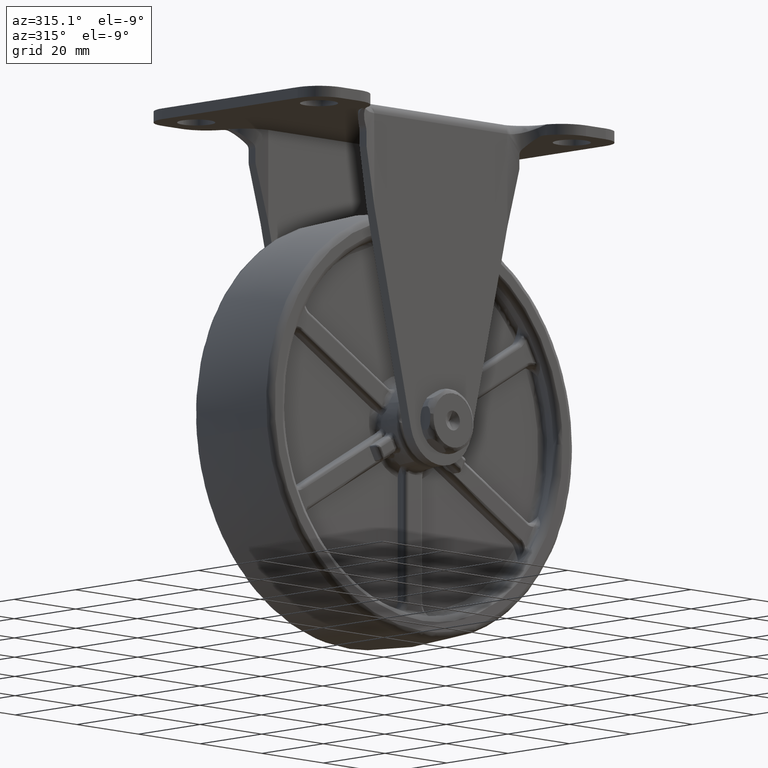
[diagram: clean part render]
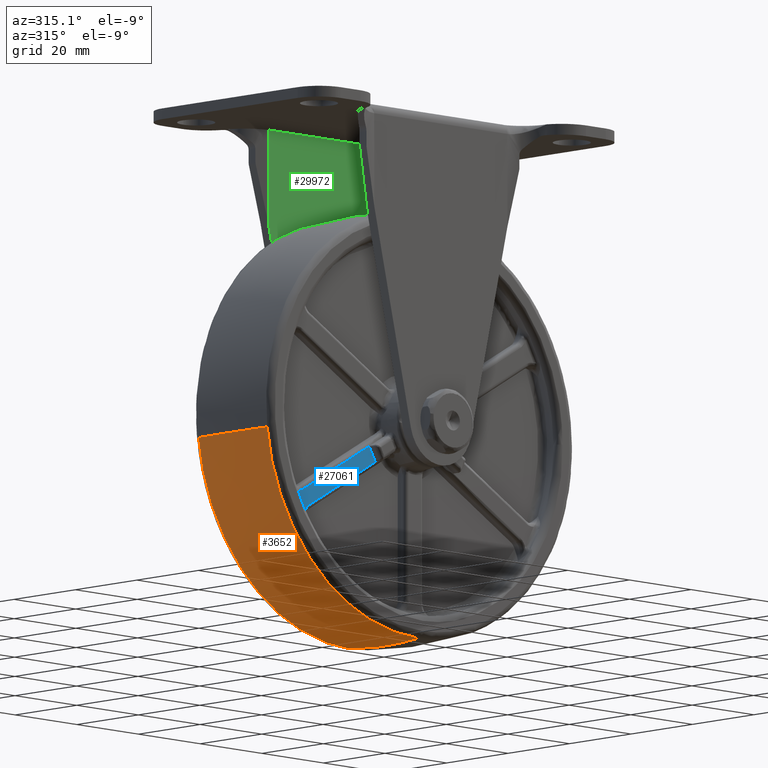
[diagram: same view with three faces highlighted in distinct colors, each labeled with its STEP entity id]
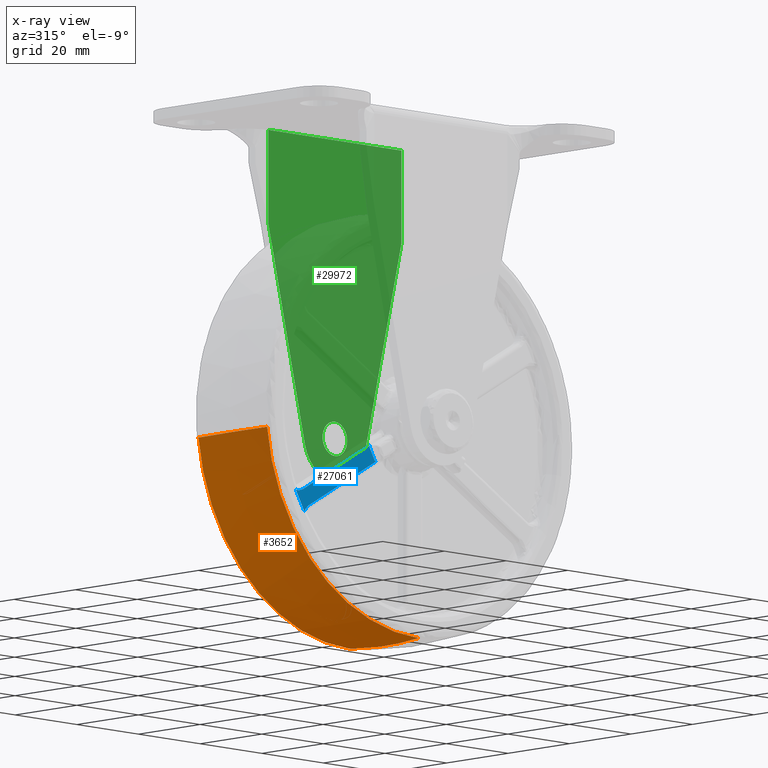
[diagram: x-ray of the same camera — body ghosted, the three highlighted faces saturated]
A machine part, auxiliary view with three faces highlighted in distinct colors.
The next image is the same camera in x-ray (body ghosted, the three faces saturated) — at least one of them is partly hidden behind the body in this view.
Their STEP definitions:

[orange] entity #3652 — the highlighted face is a freeform B-spline surface patch.
#2618=CARTESIAN_POINT('',(-32.0,11.167486431459400,-119.374479856764400));
#2619=VERTEX_POINT('',#2618);
#2633=CARTESIAN_POINT('',(-81.044250389141993,11.167505489230811,-75.700925661845233));
#2634=VERTEX_POINT('',#2633);
#2635=CARTESIAN_POINT('',(-32.0,11.167486431459400,-119.374479856764400));
#2636=CARTESIAN_POINT('',(-75.967616791955408,11.167495960345105,-119.374478428022740));
#2637=CARTESIAN_POINT('',(-81.044250389141993,11.167505489230811,-75.700925661845233));
#2645=(BOUNDED_CURVE()B_SPLINE_CURVE(2,(#2635,#2636,#2637),.UNSPECIFIED.,.F.,.U.)B_SPLINE_CURVE_WITH_KNOTS((3,3),(0.500000000000000,0.730000208169636),.UNSPECIFIED.)CURVE()GEOMETRIC_REPRESENTATION_ITEM()RATIONAL_B_SPLINE_CURVE((1.0,0.730537994805725,0.956886527919377))REPRESENTATION_ITEM(''));
#2646=EDGE_CURVE('',#2619,#2634,#2645,.T.);
#2823=CARTESIAN_POINT('',(-32.0,-11.167492936774201,-119.374479125708700));
#2824=VERTEX_POINT('',#2823);
#2930=CARTESIAN_POINT('',(-81.044251854485225,-11.167492396826070,-75.700925798277410));
#2931=VERTEX_POINT('',#2930);
#2947=CARTESIAN_POINT('',(-32.0,-11.167492936774201,-119.374479125708700));
#2948=CARTESIAN_POINT('',(-75.967617552870720,-11.167492666800136,-119.374478147435040));
#2949=CARTESIAN_POINT('',(-81.044251854485239,-11.167492396826065,-75.700925798277410));
#2957=(BOUNDED_CURVE()B_SPLINE_CURVE(2,(#2947,#2948,#2949),.UNSPECIFIED.,.F.,.U.)B_SPLINE_CURVE_WITH_KNOTS((3,3),(0.500000000000000,0.730000208285000),.UNSPECIFIED.)CURVE()GEOMETRIC_REPRESENTATION_ITEM()RATIONAL_B_SPLINE_CURVE((1.0,0.730537994670568,0.956886528146440))REPRESENTATION_ITEM(''));
#2958=EDGE_CURVE('',#2824,#2931,#2957,.T.);
#3574=CARTESIAN_POINT('',(-81.044250389141993,11.167505489230820,-75.700925661845233));
#3575=CARTESIAN_POINT('',(-81.665588956026610,5.601271344865536,-75.773151102062471));
#3576=CARTESIAN_POINT('',(-81.665588957001248,1.029126E-013,-75.773151093673704));
#3577=CARTESIAN_POINT('',(-81.665588957975899,-5.601264736789939,-75.773151085284965));
#3578=CARTESIAN_POINT('',(-81.044251854485225,-11.167492396826068,-75.700925798277410));
#3586=(BOUNDED_CURVE()B_SPLINE_CURVE(2,(#3574,#3575,#3576,#3577,#3578),.UNSPECIFIED.,.F.,.U.)B_SPLINE_CURVE_WITH_KNOTS((3,2,3),(0.444815526112356,0.500000000000000,0.555184409746665),.UNSPECIFIED.)CURVE()GEOMETRIC_REPRESENTATION_ITEM()RATIONAL_B_SPLINE_CURVE((0.931711114541153,0.942736992220657,0.956886118190660,0.942737008666203,0.931711140171939))REPRESENTATION_ITEM(''));
#3587=EDGE_CURVE('',#2634,#2931,#3586,.T.);
#3593=CARTESIAN_POINT('',(-32.0,11.167486431459395,-119.374479856764440));
#3594=CARTESIAN_POINT('',(-32.000000000000007,5.601261725915265,-120.000000000000040));
#3595=CARTESIAN_POINT('',(-32.0,-3.673819E-015,-120.0));
#3596=CARTESIAN_POINT('',(-32.0,-5.601265009316093,-120.000000000000010));
#3597=CARTESIAN_POINT('',(-32.000000000000007,-11.167492936774202,-119.374479125708690));
#3605=(BOUNDED_CURVE()B_SPLINE_CURVE(2,(#3593,#3594,#3595,#3596,#3597),.UNSPECIFIED.,.F.,.U.)B_SPLINE_CURVE_WITH_KNOTS((3,2,3),(0.444815619478294,0.500000000000000,0.555184412391886),.UNSPECIFIED.)CURVE()GEOMETRIC_REPRESENTATION_ITEM()RATIONAL_B_SPLINE_CURVE((0.973690739303435,0.985213389804397,1.0,0.985213381264808,0.973690725994274))REPRESENTATION_ITEM(''));
#3606=EDGE_CURVE('',#2619,#2824,#3605,.T.);
#3613=CARTESIAN_POINT('',(-31.680525873773124,12.293379679114002,-119.241487373301500));
#3614=CARTESIAN_POINT('',(-31.675604715384690,6.170090296546001,-120.000000000000010));
#3615=CARTESIAN_POINT('',(-31.675604715384704,-3.673819E-015,-120.000000000000010));
#3616=CARTESIAN_POINT('',(-31.675604715384690,-6.170084137367227,-120.000000000000030));
#3617=CARTESIAN_POINT('',(-31.680525863985483,-12.293367500556393,-119.241488881899880));
#3618=CARTESIAN_POINT('',(-31.840048011116249,12.293379679113995,-119.241487373301520));
#3619=CARTESIAN_POINT('',(-31.837584121219631,6.170090296546000,-120.000000000000030));
#3620=CARTESIAN_POINT('',(-31.837584121219631,-3.673819E-015,-120.000000000000070));
#3621=CARTESIAN_POINT('',(-31.837584121219635,-6.170084137367227,-120.0));
#3622=CARTESIAN_POINT('',(-31.840048006215852,-12.293367500556391,-119.241488881899910));
#3623=CARTESIAN_POINT('',(-75.849135842299660,12.293379679114000,-119.241487373301400));
#3624=CARTESIAN_POINT('',(-76.524585041347180,6.170090296546000,-119.999999999999970));
#3625=CARTESIAN_POINT('',(-76.524585041347194,-3.673819E-015,-120.0));
#3626=CARTESIAN_POINT('',(-76.524585041347180,-6.170084137367229,-119.999999999999990));
#3627=CARTESIAN_POINT('',(-75.849137185694090,-12.293367500556394,-119.241488881899910));
#3628=CARTESIAN_POINT('',(-80.931450052374700,12.293379679113993,-75.519532216695850));
#3629=CARTESIAN_POINT('',(-81.685186884611809,6.170090296546000,-75.604554727248669));
#3630=CARTESIAN_POINT('',(-81.685186884611838,-3.673819E-015,-75.604554727248697));
#3631=CARTESIAN_POINT('',(-81.685186884611809,-6.170084137367226,-75.604554727248683));
#3632=CARTESIAN_POINT('',(-80.931451551474652,-12.293367500556393,-75.519532385796325));
#3633=CARTESIAN_POINT('',(-80.950712014008545,12.293379679113993,-75.353826085989866));
#3634=CARTESIAN_POINT('',(-81.704745556233391,6.170090296545999,-75.436296070224614));
#3635=CARTESIAN_POINT('',(-81.704745556233405,-3.673819E-015,-75.436296070224628));
#3636=CARTESIAN_POINT('',(-81.704745556233391,-6.170084137367225,-75.436296070224628));
#3637=CARTESIAN_POINT('',(-80.950713513698631,-12.293367500556391,-75.353826250013640));
#3645=(BOUNDED_SURFACE()B_SPLINE_SURFACE(2,2,((#3613,#3618,#3623,#3628,#3633),(#3614,#3619,#3624,#3629,#3634),(#3615,#3620,#3625,#3630,#3635),(#3616,#3621,#3626,#3631,#3636),(#3617,#3622,#3627,#3632,#3637)),.UNSPECIFIED.,.F.,.F.,.U.)B_SPLINE_SURFACE_WITH_KNOTS((3,2,3),(3,1,1,3),(0.0,12.496622524886700,24.993232778133791),(0.0,0.380658825296803,76.512356642474657,76.893084411629573),.UNSPECIFIED.)GEOMETRIC_REPRESENTATION_ITEM()RATIONAL_B_SPLINE_SURFACE(((0.974038653882412,0.972729848599909,0.709660218013077,0.930638906825613,0.931738502382513),(0.986386973058662,0.985061575472246,0.718656894729944,0.942437028197402,0.943550563813916),(1.002694619993064,1.001347309996532,0.730538238691624,0.958018063565391,0.959150008940123),(0.986386989072714,0.985061591464780,0.718656906397382,0.942437043497924,0.943550579132516),(0.974038678134428,0.972729872819338,0.709660235682490,0.930638929997044,0.931738525581323)))REPRESENTATION_ITEM('')SURFACE());
#3646=ORIENTED_EDGE('',*,*,#2646,.F.);
#3647=ORIENTED_EDGE('',*,*,#3606,.T.);
#3648=ORIENTED_EDGE('',*,*,#2958,.T.);
#3649=ORIENTED_EDGE('',*,*,#3587,.F.);
#3650=EDGE_LOOP('',(#3646,#3647,#3648,#3649));
#3651=FACE_OUTER_BOUND('',#3650,.T.);
#3652=ADVANCED_FACE('',(#3651),#3645,.T.);

[blue] entity #27061 — the highlighted face is a freeform B-spline surface patch.
#5144=CARTESIAN_POINT('',(-67.779601679800606,-10.0,-93.849949761683106));
#5145=VERTEX_POINT('',#5144);
#5204=CARTESIAN_POINT('',(-70.544463212500602,-10.0,-89.061069111153998));
#5205=VERTEX_POINT('',#5204);
#5221=CARTESIAN_POINT('',(-70.544463212500602,-10.0,-89.061069111153969));
#5222=CARTESIAN_POINT('',(-69.316312072259890,-10.0,-91.544582820083221));
#5223=CARTESIAN_POINT('',(-67.779601679800621,-10.0,-93.849949761683121));
#5231=(BOUNDED_CURVE()B_SPLINE_CURVE(2,(#5221,#5222,#5223),.UNSPECIFIED.,.F.,.U.)CURVE()GEOMETRIC_REPRESENTATION_ITEM()QUASI_UNIFORM_CURVE()RATIONAL_B_SPLINE_CURVE((1.0,0.997930671461332,1.0))REPRESENTATION_ITEM(''));
#5232=EDGE_CURVE('',#5205,#5145,#5231,.T.);
#17066=CARTESIAN_POINT('',(-46.565563007709287,-10.0,-76.621508458685994));
#17067=VERTEX_POINT('',#17066);
#17074=CARTESIAN_POINT('',(-46.360389294386003,-9.999999999999709,-75.981573692900895));
#17075=VERTEX_POINT('',#17074);
#17081=CARTESIAN_POINT('',(-46.565563007709251,-10.0,-76.621508458685980));
#17082=CARTESIAN_POINT('',(-46.753341733993729,-10.0,-76.208445047792466));
#17083=CARTESIAN_POINT('',(-46.360389294385982,-10.0,-75.981573692900923));
#17091=(BOUNDED_CURVE()B_SPLINE_CURVE(2,(#17081,#17082,#17083),.UNSPECIFIED.,.F.,.U.)CURVE()GEOMETRIC_REPRESENTATION_ITEM()QUASI_UNIFORM_CURVE()RATIONAL_B_SPLINE_CURVE((1.0,0.740531729840645,1.0))REPRESENTATION_ITEM(''));
#17092=EDGE_CURVE('',#17067,#17075,#17091,.T.);
#17111=CARTESIAN_POINT('',(-45.017175456027999,-10.0,-79.303394173471389));
#17112=VERTEX_POINT('',#17111);
#17120=CARTESIAN_POINT('',(-45.017175456028021,-10.0,-79.303394173471403));
#17121=CARTESIAN_POINT('',(-45.921749886360729,-10.0,-78.037726627506984));
#17122=CARTESIAN_POINT('',(-46.565563007709308,-10.0,-76.621508458685994));
#17130=(BOUNDED_CURVE()B_SPLINE_CURVE(2,(#17120,#17121,#17122),.UNSPECIFIED.,.F.,.U.)CURVE()GEOMETRIC_REPRESENTATION_ITEM()QUASI_UNIFORM_CURVE()RATIONAL_B_SPLINE_CURVE((1.0,0.995306360363044,1.0))REPRESENTATION_ITEM(''));
#17131=EDGE_CURVE('',#17112,#17067,#17130,.T.);
#17150=CARTESIAN_POINT('',(-44.360388822002150,-10.0,-79.445675640822401));
#17151=VERTEX_POINT('',#17150);
#17159=CARTESIAN_POINT('',(-44.360388822002150,-10.0,-79.445675640822401));
#17160=CARTESIAN_POINT('',(-44.753341326708650,-10.0,-79.672547096437000));
#17161=CARTESIAN_POINT('',(-45.017175456027978,-10.0,-79.303394173471375));
#17169=(BOUNDED_CURVE()B_SPLINE_CURVE(2,(#17159,#17160,#17161),.UNSPECIFIED.,.F.,.U.)CURVE()GEOMETRIC_REPRESENTATION_ITEM()QUASI_UNIFORM_CURVE()RATIONAL_B_SPLINE_CURVE((1.0,0.740531651168277,1.0))REPRESENTATION_ITEM(''));
#17170=EDGE_CURVE('',#17151,#17112,#17169,.T.);
#21367=CARTESIAN_POINT('',(-68.124777983338802,-10.0,-88.547248605518291));
#21368=VERTEX_POINT('',#21367);
#21369=CARTESIAN_POINT('',(-68.124777983338817,-10.0,-88.547248605518249));
#21370=CARTESIAN_POINT('',(-69.251089294119780,-10.0,-89.197524751211930));
#21371=CARTESIAN_POINT('',(-70.544463212500602,-10.0,-89.061069111153969));
#21379=(BOUNDED_CURVE()B_SPLINE_CURVE(2,(#21369,#21370,#21371),.UNSPECIFIED.,.F.,.U.)CURVE()GEOMETRIC_REPRESENTATION_ITEM()QUASI_UNIFORM_CURVE()RATIONAL_B_SPLINE_CURVE((1.0,0.950995464301130,1.0))REPRESENTATION_ITEM(''));
#21380=EDGE_CURVE('',#21368,#5205,#21379,.T.);
#21433=CARTESIAN_POINT('',(-46.360389294386003,-9.999999999999709,-75.981573692900895));
#21434=CARTESIAN_POINT('',(-68.124777983338802,-10.0,-88.547248605518291));
#21435=QUASI_UNIFORM_CURVE('',1,(#21433,#21434),.UNSPECIFIED.,.F.,.U.);
#21436=EDGE_CURVE('',#17075,#21368,#21435,.T.);
#21566=CARTESIAN_POINT('',(-66.124777557539801,-10.0,-92.011351196459302));
#21567=VERTEX_POINT('',#21566);
#21590=CARTESIAN_POINT('',(-66.124777557539801,-10.0,-92.011351196459302));
#21591=CARTESIAN_POINT('',(-44.360388822002150,-10.0,-79.445675640822401));
#21592=QUASI_UNIFORM_CURVE('',1,(#21590,#21591),.UNSPECIFIED.,.F.,.U.);
#21593=EDGE_CURVE('',#21567,#17151,#21592,.T.);
#21615=CARTESIAN_POINT('',(-67.779601679800606,-10.0,-93.849949761683106));
#21616=CARTESIAN_POINT('',(-67.251088798159003,-10.0,-92.661627331932067));
#21617=CARTESIAN_POINT('',(-66.124777557539801,-10.0,-92.011351196459316));
#21625=(BOUNDED_CURVE()B_SPLINE_CURVE(2,(#21615,#21616,#21617),.UNSPECIFIED.,.F.,.U.)CURVE()GEOMETRIC_REPRESENTATION_ITEM()QUASI_UNIFORM_CURVE()RATIONAL_B_SPLINE_CURVE((1.0,0.950995468906306,1.0))REPRESENTATION_ITEM(''));
#21626=EDGE_CURVE('',#5145,#21567,#21625,.T.);
#27046=CARTESIAN_POINT('',(-71.852358567197712,-10.0,-94.742478234823068));
#27047=CARTESIAN_POINT('',(-43.052495574239863,-10.0,-94.742478234823068));
#27048=CARTESIAN_POINT('',(-71.852358567197712,-10.0,-75.089049053898464));
#27049=CARTESIAN_POINT('',(-43.052495574239863,-10.0,-75.089049053898464));
#27050=B_SPLINE_SURFACE_WITH_KNOTS('',1,1,((#27046,#27048),(#27047,#27049)),.UNSPECIFIED.,.F.,.F.,.U.,(2,2),(2,2),(0.0,28.799862992957848),(0.0,19.653429180924601),.UNSPECIFIED.);
#27051=ORIENTED_EDGE('',*,*,#21380,.T.);
#27052=ORIENTED_EDGE('',*,*,#5232,.T.);
#27053=ORIENTED_EDGE('',*,*,#21626,.T.);
#27054=ORIENTED_EDGE('',*,*,#21593,.T.);
#27055=ORIENTED_EDGE('',*,*,#17170,.T.);
#27056=ORIENTED_EDGE('',*,*,#17131,.T.);
#27057=ORIENTED_EDGE('',*,*,#17092,.T.);
#27058=ORIENTED_EDGE('',*,*,#21436,.T.);
#27059=EDGE_LOOP('',(#27051,#27052,#27053,#27054,#27055,#27056,#27057,#27058));
#27060=FACE_OUTER_BOUND('',#27059,.T.);
#27061=ADVANCED_FACE('',(#27060),#27050,.T.);

[green] entity #29972 — the highlighted face is a freeform B-spline surface patch.
#27372=CARTESIAN_POINT('',(0.0,16.0,3.999999999999885));
#27373=VERTEX_POINT('',#27372);
#27374=CARTESIAN_POINT('',(3.987669334917721,16.0,0.313836383097842));
#27375=VERTEX_POINT('',#27374);
#27376=CARTESIAN_POINT('',(0.0,16.0,3.999999999999885));
#27377=CARTESIAN_POINT('',(3.697561966285842,16.000000000000004,3.999999999999885));
#27378=CARTESIAN_POINT('',(3.987669334917721,16.000000000000004,0.313836383097842));
#27386=(BOUNDED_CURVE()B_SPLINE_CURVE(2,(#27376,#27377,#27378),.UNSPECIFIED.,.F.,.U.)B_SPLINE_CURVE_WITH_KNOTS((3,3),(0.0,0.236331300616735),.UNSPECIFIED.)CURVE()GEOMETRIC_REPRESENTATION_ITEM()RATIONAL_B_SPLINE_CURVE((1.0,0.723120658623980,0.969723356138357))REPRESENTATION_ITEM(''));
#27387=EDGE_CURVE('',#27373,#27375,#27386,.T.);
#27389=CARTESIAN_POINT('',(-3.987669334917721,16.0,-0.313836383097842));
#27390=VERTEX_POINT('',#27389);
#27391=CARTESIAN_POINT('',(-3.987669334917721,15.999999999999998,-0.313836383097842));
#27392=CARTESIAN_POINT('',(-3.999999999999885,16.000000000000004,-0.157160428218010));
#27393=CARTESIAN_POINT('',(-3.999999999999885,16.0,0.0));
#27394=CARTESIAN_POINT('',(-3.999999999999885,15.999999999999998,3.999999999999885));
#27395=CARTESIAN_POINT('',(0.0,16.0,3.999999999999885));
#27403=(BOUNDED_CURVE()B_SPLINE_CURVE(2,(#27391,#27392,#27393,#27394,#27395),.UNSPECIFIED.,.F.,.U.)B_SPLINE_CURVE_WITH_KNOTS((3,2,3),(0.736331300616735,0.750000000000000,1.0),.UNSPECIFIED.)CURVE()GEOMETRIC_REPRESENTATION_ITEM()RATIONAL_B_SPLINE_CURVE((0.969723356138358,0.983986122562568,1.0,0.707106781186548,1.0))REPRESENTATION_ITEM(''));
#27404=EDGE_CURVE('',#27390,#27373,#27403,.T.);
#27471=CARTESIAN_POINT('',(0.0,16.0,-3.999999999999885));
#27472=VERTEX_POINT('',#27471);
#27473=CARTESIAN_POINT('',(3.987669334917721,16.0,0.313836383097842));
#27474=CARTESIAN_POINT('',(3.999999999999885,16.000000000000004,0.157160428218010));
#27475=CARTESIAN_POINT('',(3.999999999999885,16.0,0.0));
#27476=CARTESIAN_POINT('',(3.999999999999885,15.999999999999998,-3.999999999999885));
#27477=CARTESIAN_POINT('',(0.0,16.0,-3.999999999999885));
#27485=(BOUNDED_CURVE()B_SPLINE_CURVE(2,(#27473,#27474,#27475,#27476,#27477),.UNSPECIFIED.,.F.,.U.)B_SPLINE_CURVE_WITH_KNOTS((3,2,3),(0.236331300616735,0.250000000000000,0.500000000000000),.UNSPECIFIED.)CURVE()GEOMETRIC_REPRESENTATION_ITEM()RATIONAL_B_SPLINE_CURVE((0.969723356138357,0.983986122562568,1.0,0.707106781186548,1.0))REPRESENTATION_ITEM(''));
#27486=EDGE_CURVE('',#27375,#27472,#27485,.T.);
#27520=CARTESIAN_POINT('',(0.0,16.0,-3.999999999999885));
#27521=CARTESIAN_POINT('',(-3.697561966285839,16.0,-3.999999999999885));
#27522=CARTESIAN_POINT('',(-3.987669334917721,15.999999999999998,-0.313836383097842));
#27530=(BOUNDED_CURVE()B_SPLINE_CURVE(2,(#27520,#27521,#27522),.UNSPECIFIED.,.F.,.U.)B_SPLINE_CURVE_WITH_KNOTS((3,3),(0.500000000000000,0.736331300616734),.UNSPECIFIED.)CURVE()GEOMETRIC_REPRESENTATION_ITEM()RATIONAL_B_SPLINE_CURVE((1.0,0.723120658623980,0.969723356138357))REPRESENTATION_ITEM(''));
#27531=EDGE_CURVE('',#27472,#27390,#27530,.T.);
#29856=CARTESIAN_POINT('',(21.590256900298950,16.0,47.909585734529102));
#29857=VERTEX_POINT('',#29856);
#29892=CARTESIAN_POINT('',(21.590256900298950,16.0,69.499995999999996));
#29893=VERTEX_POINT('',#29892);
#29907=CARTESIAN_POINT('',(21.590256900298950,16.0,69.499995999999996));
#29908=CARTESIAN_POINT('',(21.590256900298950,16.0,47.909585734529102));
#29909=QUASI_UNIFORM_CURVE('',1,(#29907,#29908),.UNSPECIFIED.,.F.,.U.);
#29910=EDGE_CURVE('',#29893,#29857,#29909,.T.);
#29915=CARTESIAN_POINT('',(-23.747124291642240,16.0,-13.971016825015351));
#29916=CARTESIAN_POINT('',(-23.747124291642240,16.0,73.471016449591176));
#29917=CARTESIAN_POINT('',(23.747124677706019,16.0,-13.971016825015351));
#29918=CARTESIAN_POINT('',(23.747124677706019,16.0,73.471016449591190));
#29919=B_SPLINE_SURFACE_WITH_KNOTS('',1,1,((#29915,#29917),(#29916,#29918)),.UNSPECIFIED.,.F.,.F.,.U.,(2,2),(2,2),(0.0,87.442033274606544),(0.0,47.494248969348263),.UNSPECIFIED.);
#29920=CARTESIAN_POINT('',(9.732252464196970,16.0,-2.298527566315305));
#29921=VERTEX_POINT('',#29920);
#29922=CARTESIAN_POINT('',(9.732252464196970,16.0,-2.298527566315305));
#29923=CARTESIAN_POINT('',(21.590256900298950,16.0,47.909585734529102));
#29924=QUASI_UNIFORM_CURVE('',1,(#29922,#29923),.UNSPECIFIED.,.F.,.U.);
#29925=EDGE_CURVE('',#29921,#29857,#29924,.T.);
#29926=ORIENTED_EDGE('',*,*,#29925,.T.);
#29927=ORIENTED_EDGE('',*,*,#29910,.F.);
#29928=CARTESIAN_POINT('',(-21.590256900299050,16.0,69.499995999999996));
#29929=VERTEX_POINT('',#29928);
#29930=CARTESIAN_POINT('',(-21.590256900299050,16.0,69.499995999999996));
#29931=CARTESIAN_POINT('',(21.590256900298950,16.0,69.499995999999996));
#29932=QUASI_UNIFORM_CURVE('',1,(#29930,#29931),.UNSPECIFIED.,.F.,.U.);
#29933=EDGE_CURVE('',#29929,#29893,#29932,.T.);
#29934=ORIENTED_EDGE('',*,*,#29933,.F.);
#29935=CARTESIAN_POINT('',(-21.590256900298950,16.0,47.909585734528697));
#29936=VERTEX_POINT('',#29935);
#29937=CARTESIAN_POINT('',(-21.590256900299050,16.0,69.499995999999996));
#29938=CARTESIAN_POINT('',(-21.590256900298950,16.0,47.909585734528697));
#29939=QUASI_UNIFORM_CURVE('',1,(#29937,#29938),.UNSPECIFIED.,.F.,.U.);
#29940=EDGE_CURVE('',#29929,#29936,#29939,.T.);
#29941=ORIENTED_EDGE('',*,*,#29940,.T.);
#29942=CARTESIAN_POINT('',(-9.732252464196970,16.0,-2.298527566315295));
#29943=VERTEX_POINT('',#29942);
#29944=CARTESIAN_POINT('',(-21.590256900298950,16.0,47.909585734528697));
#29945=CARTESIAN_POINT('',(-9.732252464196970,16.0,-2.298527566315295));
#29946=QUASI_UNIFORM_CURVE('',1,(#29944,#29945),.UNSPECIFIED.,.F.,.U.);
#29947=EDGE_CURVE('',#29936,#29943,#29946,.T.);
#29948=ORIENTED_EDGE('',*,*,#29947,.T.);
#29949=CARTESIAN_POINT('',(-9.732252464196971,16.0,-2.298527566315295));
#29950=CARTESIAN_POINT('',(-7.913343065765032,16.0,-9.999992821498069));
#29951=CARTESIAN_POINT('',(0.0,16.0,-9.999992821498069));
#29952=CARTESIAN_POINT('',(7.913343065765021,16.0,-9.999992821498067));
#29953=CARTESIAN_POINT('',(9.732252464196968,16.0,-2.298527566315306));
#29961=(BOUNDED_CURVE()B_SPLINE_CURVE(2,(#29949,#29950,#29951,#29952,#29953),.UNSPECIFIED.,.F.,.U.)B_SPLINE_CURVE_WITH_KNOTS((3,2,3),(0.0,0.500000000000000,1.0),.UNSPECIFIED.)CURVE()GEOMETRIC_REPRESENTATION_ITEM()RATIONAL_B_SPLINE_CURVE((1.0,0.784172645047544,1.0,0.784172645047544,1.0))REPRESENTATION_ITEM(''));
#29962=EDGE_CURVE('',#29943,#29921,#29961,.T.);
#29963=ORIENTED_EDGE('',*,*,#29962,.T.);
#29964=EDGE_LOOP('',(#29926,#29927,#29934,#29941,#29948,#29963));
#29965=FACE_OUTER_BOUND('',#29964,.T.);
#29966=ORIENTED_EDGE('',*,*,#27531,.T.);
#29967=ORIENTED_EDGE('',*,*,#27404,.T.);
#29968=ORIENTED_EDGE('',*,*,#27387,.T.);
#29969=ORIENTED_EDGE('',*,*,#27486,.T.);
#29970=EDGE_LOOP('',(#29966,#29967,#29968,#29969));
#29971=FACE_BOUND('',#29970,.T.);
#29972=ADVANCED_FACE('',(#29965,#29971),#29919,.F.);